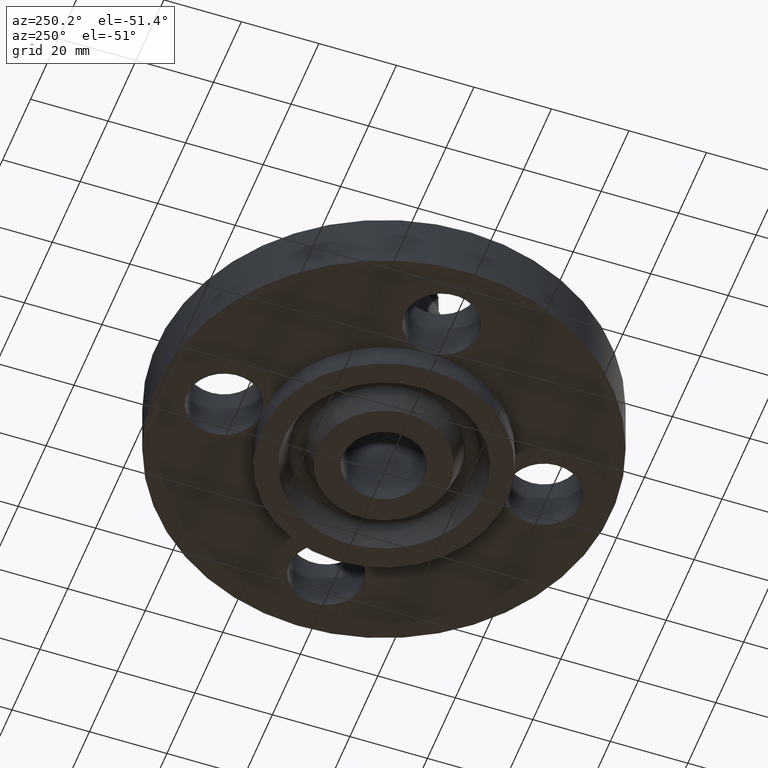
[diagram: clean part render]
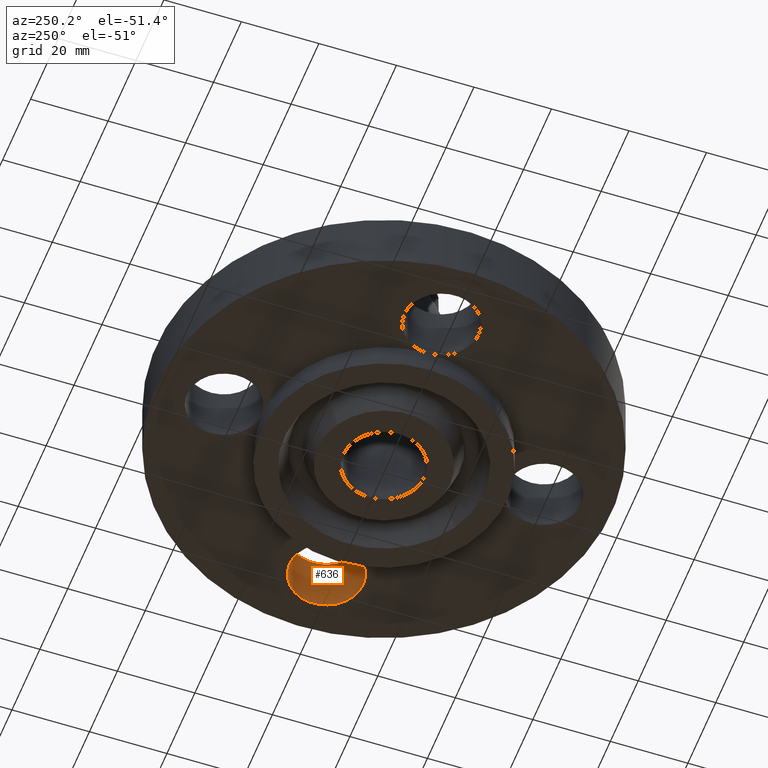
[diagram: same view with one face highlighted and labeled with its STEP entity id]
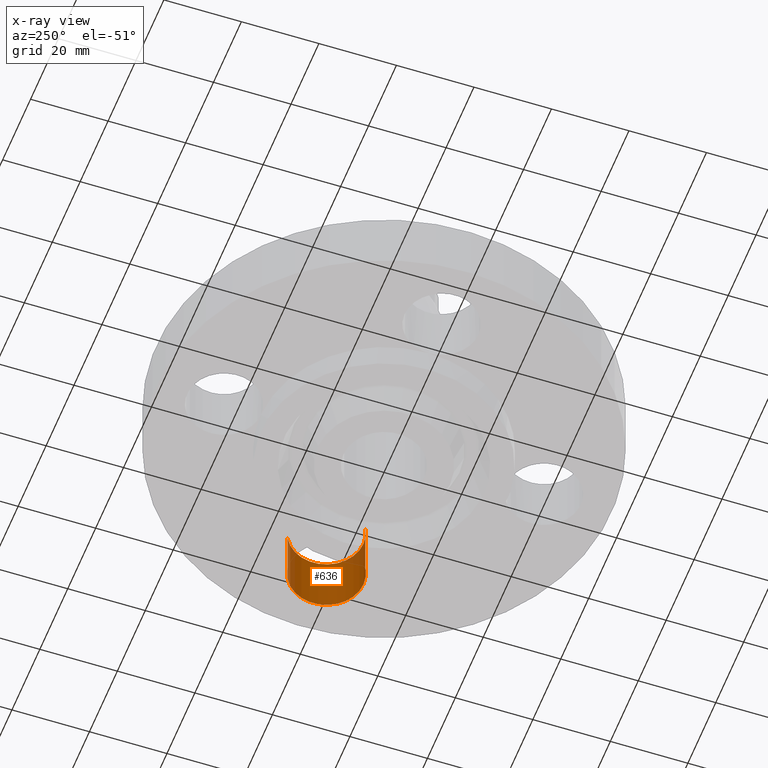
[diagram: x-ray of the same camera — body ghosted, the highlighted face saturated]
A machine part, auxiliary view. The second image highlights one B-rep face of the part: STEP entity #636.
The next image is the same camera in x-ray: the body ghosted, the highlighted face saturated — about 8% of this face is hidden behind the body in this view.
In plain terms, the highlighted cylindrical surface (partial cylindrical patch) has radius 9.525 mm, axis along (0, -0, -1).
Its self-contained STEP definition (entity closure, byte-faithful):
#556=AXIS2_PLACEMENT_3D('Circle Axis2P3D',#554,#555,$) ;
#609=AXIS2_PLACEMENT_3D('Cylinder Axis2P3D',#606,#607,#608) ;
#627=AXIS2_PLACEMENT_3D('Circle Axis2P3D',#625,#626,$) ;
#551=CARTESIAN_POINT('Vertex',(1.44521542303,-0.32909346071,0.)) ;
#554=CARTESIAN_POINT('Axis2P3D Location',(1.62500000001,-1.39870617276E-016,0.)) ;
#558=CARTESIAN_POINT('Vertex',(1.80478457698,0.32909346071,0.)) ;
#606=CARTESIAN_POINT('Axis2P3D Location',(1.62500000001,-1.8023868212E-016,0.616062992128)) ;
#611=CARTESIAN_POINT('Line Origine',(1.80478457698,0.32909346071,0.310000000001)) ;
#615=CARTESIAN_POINT('Vertex',(1.80478457698,0.32909346071,0.620000000002)) ;
#618=CARTESIAN_POINT('Line Origine',(1.44521542303,-0.32909346071,0.310000000001)) ;
#622=CARTESIAN_POINT('Vertex',(1.44521542303,-0.32909346071,0.620000000002)) ;
#625=CARTESIAN_POINT('Axis2P3D Location',(1.62500000001,-1.8023868212E-016,0.620000000002)) ;
#555=DIRECTION('Axis2P3D Direction',(0.,0.,-0.0393700787402)) ;
#607=DIRECTION('Axis2P3D Direction',(0.,-0.,-0.0393700787402)) ;
#608=DIRECTION('Axis2P3D XDirection',(-0.0188750212049,-0.0345504945626,0.)) ;
#612=DIRECTION('Vector Direction',(0.,0.,-0.0393700787402)) ;
#619=DIRECTION('Vector Direction',(0.,0.,-0.0393700787402)) ;
#626=DIRECTION('Axis2P3D Direction',(0.,-0.,-0.0393700787402)) ;
#613=VECTOR('Line Direction',#612,0.0393700787402) ;
#620=VECTOR('Line Direction',#619,0.0393700787402) ;
#631=ORIENTED_EDGE('',*,*,#617,.F.) ;
#632=ORIENTED_EDGE('',*,*,#560,.T.) ;
#633=ORIENTED_EDGE('',*,*,#624,.T.) ;
#634=ORIENTED_EDGE('',*,*,#629,.F.) ;
#636=ADVANCED_FACE('PartBody',(#635),#610,.F.) ;
#557=CIRCLE('generated circle',#556,0.375000000001) ;
#628=CIRCLE('generated circle',#627,0.375000000001) ;
#610=CYLINDRICAL_SURFACE('generated cylinder',#609,0.375000000001) ;
#560=EDGE_CURVE('',#559,#552,#557,.T.) ;
#617=EDGE_CURVE('',#559,#616,#614,.F.) ;
#624=EDGE_CURVE('',#552,#623,#621,.F.) ;
#629=EDGE_CURVE('',#616,#623,#628,.T.) ;
#630=EDGE_LOOP('',(#631,#632,#633,#634)) ;
#635=FACE_OUTER_BOUND('',#630,.T.) ;
#614=LINE('Line',#611,#613) ;
#621=LINE('Line',#618,#620) ;
#552=VERTEX_POINT('',#551) ;
#559=VERTEX_POINT('',#558) ;
#616=VERTEX_POINT('',#615) ;
#623=VERTEX_POINT('',#622) ;